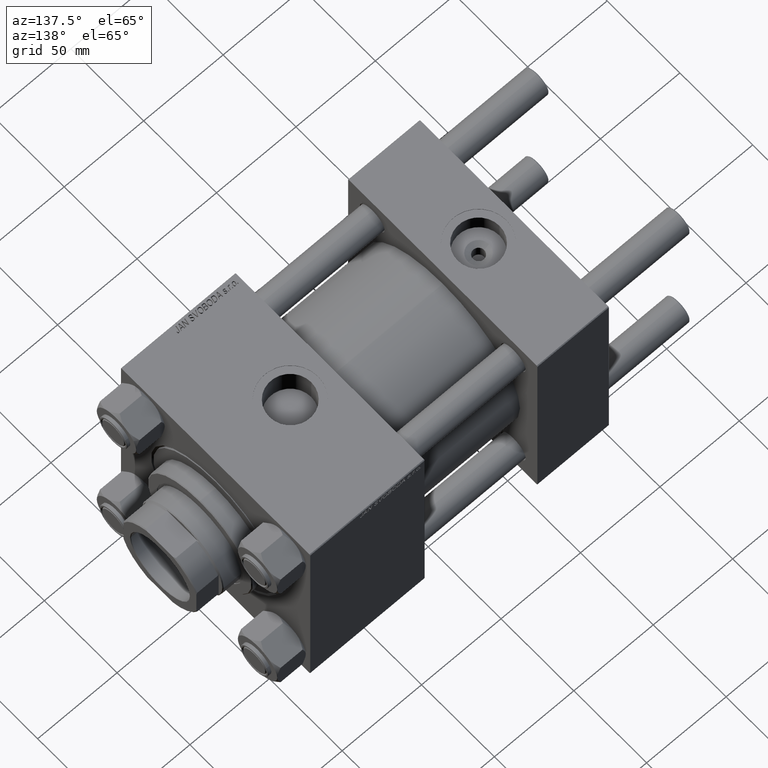
[diagram: clean part render]
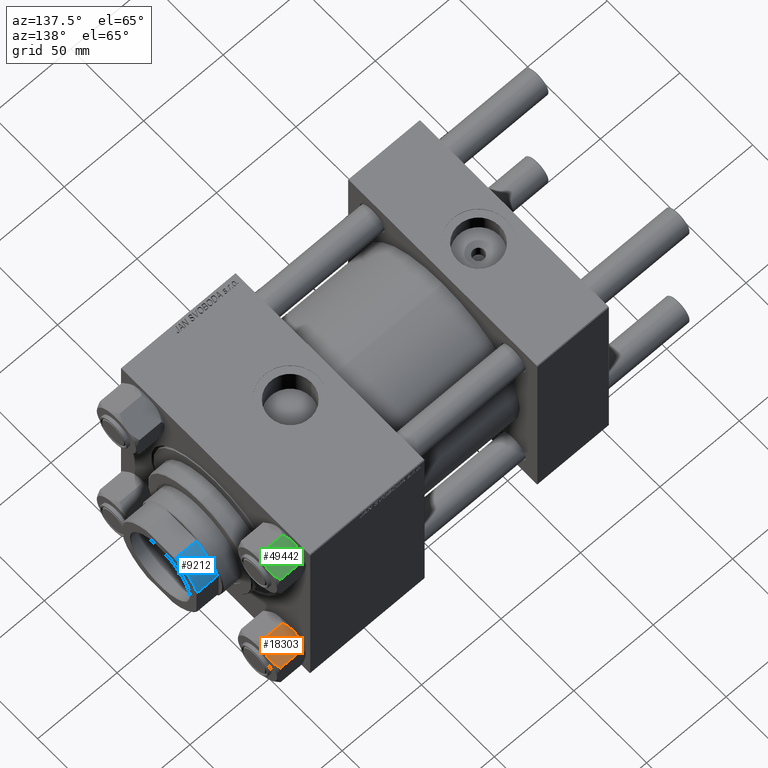
[diagram: same view with three faces highlighted in distinct colors, each labeled with its STEP entity id]
A machine part, auxiliary view with three faces highlighted in distinct colors.
Their STEP definitions:

[orange] entity #18303 — the highlighted planar face has unit normal (0, -0.5, -0.866).
#768 = EDGE_CURVE ( 'NONE', #28690, #17134, #28759, .T. ) ;
#1678 = CARTESIAN_POINT ( 'NONE',  ( -13.99051971937273819, -2.822342635978014158, -17.26828031537188224 ) ) ;
#1760 = CARTESIAN_POINT ( 'NONE',  ( -8.502393313253744367, -12.32805640973649020, -16.58801072835993295 ) ) ;
#2431 = DIRECTION ( 'NONE',  ( -0.5000000000000004441, 0.8660254037844382635, 0.000000000000000000 ) ) ;
#2950 = DIRECTION ( 'NONE',  ( 0.5000000000000004441, -0.8660254037844382635, 0.000000000000000000 ) ) ;
#3332 = CARTESIAN_POINT ( 'NONE',  ( -7.809999999999990727, -13.52731680711293727, -18.00000000000000000 ) ) ;
#3690 = VERTEX_POINT ( 'NONE', #31344 ) ;
#3695 = VERTEX_POINT ( 'NONE', #14919 ) ;
#3804 = LINE ( 'NONE', #19964, #32401 ) ;
#3808 = CARTESIAN_POINT ( 'NONE',  ( -13.04337073483127796, -4.462852799541088267, -0.2430846701012951416 ) ) ;
#4822 = CARTESIAN_POINT ( 'NONE',  ( -11.71499999999999808, -6.763658403556473964, 0.000000000000000000 ) ) ;
#4836 = EDGE_CURVE ( 'NONE', #52198, #37207, #22832, .T. ) ;
#5489 = VECTOR ( 'NONE', #12495, 1000.000000000000227 ) ;
#5822 = CARTESIAN_POINT ( 'NONE',  ( -7.809999999999990727, -13.52731680711293727, -16.00000000000000000 ) ) ;
#6164 = CARTESIAN_POINT ( 'NONE',  ( -14.92394044919338292, -1.205610507090640215, -16.56553707812499709 ) ) ;
#7308 = CARTESIAN_POINT ( 'NONE',  ( -10.38662926516871288, -9.064464007571855220, -17.75691532989870680 ) ) ;
#7810 = ORIENTED_EDGE ( 'NONE', *, *, #768, .F. ) ;
#8236 = CARTESIAN_POINT ( 'NONE',  ( -7.809999999999990727, -13.52731680711293727, -16.00000000000000000 ) ) ;
#9292 = VERTEX_POINT ( 'NONE', #31191 ) ;
#9927 = EDGE_CURVE ( 'NONE', #3695, #16582, #31009, .T. ) ;
#10059 = CARTESIAN_POINT ( 'NONE',  ( -8.506059550806609693, -12.32170630002229927, -1.434462921875002905 ) ) ;
#11559 = ORIENTED_EDGE ( 'NONE', *, *, #9927, .F. ) ;
#11577 = DIRECTION ( 'NONE',  ( 0.5000000000000004441, -0.8660254037844382635, 0.000000000000000000 ) ) ;
#11787 = DIRECTION ( 'NONE',  ( -0.000000000000000000, -0.000000000000000000, 1.000000000000000000 ) ) ;
#11998 = CARTESIAN_POINT ( 'NONE',  ( -15.52647173767732625, -0.1619957022865126384, -2.000000000000000000 ) ) ;
#12257 = CARTESIAN_POINT ( 'NONE',  ( -13.36540581434587338, -3.905071680002329515, -0.3836066851120569221 ) ) ;
#12399 = CARTESIAN_POINT ( 'NONE',  ( -7.903528262322667253, -13.36532110482643176, -2.000000000000000000 ) ) ;
#12495 = DIRECTION ( 'NONE',  ( -0.5000000000000004441, 0.8660254037844382635, 0.000000000000000000 ) ) ;
#13979 = EDGE_CURVE ( 'NONE', #16582, #9292, #37870, .T. ) ;
#14191 = CARTESIAN_POINT ( 'NONE',  ( -11.71499999999999808, -6.763658403556473964, -18.00000000000000000 ) ) ;
#14277 = VECTOR ( 'NONE', #11787, 1000.000000000000000 ) ;
#14919 = CARTESIAN_POINT ( 'NONE',  ( -11.71499999999999808, -6.763658403556473964, -18.00000000000000000 ) ) ;
#15198 = CARTESIAN_POINT ( 'NONE',  ( -15.52647173767732625, -0.1619957022865126384, -16.00000000000000000 ) ) ;
#15380 = FACE_OUTER_BOUND ( 'NONE', #28102, .T. ) ;
#16471 = CARTESIAN_POINT ( 'NONE',  ( -15.52647173767732625, -0.1619957022865126384, -2.000000000000000000 ) ) ;
#16582 = VERTEX_POINT ( 'NONE', #15198 ) ;
#16754 = CARTESIAN_POINT ( 'NONE',  ( -12.38621571200405036, -5.601078687526934274, -0.05089381635301216955 ) ) ;
#17134 = VERTEX_POINT ( 'NONE', #16471 ) ;
#17159 = EDGE_CURVE ( 'NONE', #49311, #37993, #48004, .T. ) ;
#18287 = CARTESIAN_POINT ( 'NONE',  ( -7.809999999999990727, -13.52731680711293727, -1.999999999999998224 ) ) ;
#18303 = ADVANCED_FACE ( 'NONE', ( #15380 ), #42669, .F. ) ;
#18626 = CARTESIAN_POINT ( 'NONE',  ( -14.30591678195075644, -2.276058899034903771, -17.05261278537718539 ) ) ;
#18996 = EDGE_CURVE ( 'NONE', #17134, #3690, #23517, .T. ) ;
#19964 = CARTESIAN_POINT ( 'NONE',  ( -15.62000000000000277, -9.678749765951853952E-16, -18.00000000000000000 ) ) ;
#20277 = B_SPLINE_CURVE_WITH_KNOTS ( 'NONE', 3,
 ( #30189, #34414, #43152, #42624, #46339, #10059, #42894, #26213 ),
 .UNSPECIFIED., .F., .F.,
 ( 4, 2, 2, 4 ),
 ( 0.007890825462474437835, 0.01181022244528555365, 0.01376992093669110982, 0.01572961942809666600 ),
 .UNSPECIFIED. ) ;
#20546 = ORIENTED_EDGE ( 'NONE', *, *, #25928, .F. ) ;
#21816 = CARTESIAN_POINT ( 'NONE',  ( -13.02784502466562344, -4.489744118371593373, -17.80281335400754728 ) ) ;
#22001 = DIRECTION ( 'NONE',  ( -0.5000000000000004441, 0.8660254037844382635, 0.000000000000000000 ) ) ;
#22832 = LINE ( 'NONE', #27580, #47447 ) ;
#23101 = EDGE_CURVE ( 'NONE', #37993, #3695, #45932, .T. ) ;
#23517 = B_SPLINE_CURVE_WITH_KNOTS ( 'NONE', 3,
 ( #11998, #28165, #48793, #12257, #3808, #16754, #24692, #4822 ),
 .UNSPECIFIED., .F., .F.,
 ( 4, 2, 2, 4 ),
 ( 4.472842642001277084E-07, 0.003945636373369319598, 0.005918230917921879150, 0.007890825462474437835 ),
 .UNSPECIFIED. ) ;
#24692 = CARTESIAN_POINT ( 'NONE',  ( -12.04818928091285102, -6.186557640478069331, 1.785545452812065115E-15 ) ) ;
#25928 = EDGE_CURVE ( 'NONE', #9292, #28690, #3804, .T. ) ;
#26118 = CARTESIAN_POINT ( 'NONE',  ( -9.114548888011778871, -11.26777185211904353, -17.08577173959730544 ) ) ;
#26213 = CARTESIAN_POINT ( 'NONE',  ( -7.903528262322667253, -13.36532110482643176, -2.000000000000000000 ) ) ;
#27175 = CARTESIAN_POINT ( 'NONE',  ( -11.04378428799594225, -7.926238119586011877, -17.94910618364698252 ) ) ;
#27438 = CARTESIAN_POINT ( 'NONE',  ( -11.38181071908713982, -7.340759166634878596, -18.00000000000000355 ) ) ;
#27580 = CARTESIAN_POINT ( 'NONE',  ( -7.809999999999990727, -13.52731680711293727, -1.999999999999998224 ) ) ;
#27691 = CARTESIAN_POINT ( 'NONE',  ( -7.903528262322667253, -13.36532110482643176, -16.00000000000000000 ) ) ;
#28102 = EDGE_LOOP ( 'NONE', ( #31022, #34680, #34231, #36395, #37933, #7810, #20546, #44643, #11559, #29330 ) ) ;
#28145 = CARTESIAN_POINT ( 'NONE',  ( -7.809999999999990727, -13.52731680711293727, -16.00000000000000000 ) ) ;
#28165 = CARTESIAN_POINT ( 'NONE',  ( -14.92760668674624647, -1.199260397376458398, -1.411989271640067045 ) ) ;
#28690 = VERTEX_POINT ( 'NONE', #45685 ) ;
#28759 = LINE ( 'NONE', #48870, #40512 ) ;
#29330 = ORIENTED_EDGE ( 'NONE', *, *, #23101, .F. ) ;
#30189 = CARTESIAN_POINT ( 'NONE',  ( -11.71499999999999808, -6.763658403556473964, 0.000000000000000000 ) ) ;
#30494 = DIRECTION ( 'NONE',  ( 0.8660254037844383745, 0.5000000000000005551, 0.000000000000000000 ) ) ;
#31009 = B_SPLINE_CURVE_WITH_KNOTS ( 'NONE', 3,
 ( #38738, #51176, #21816, #1678, #18626, #6164, #38200, #34498 ),
 .UNSPECIFIED., .F., .F.,
 ( 4, 2, 2, 4 ),
 ( 0.007890825462474418753, 0.01181022244528553457, 0.01376992093669109074, 0.01572961942809664865 ),
 .UNSPECIFIED. ) ;
#31022 = ORIENTED_EDGE ( 'NONE', *, *, #17159, .F. ) ;
#31191 = CARTESIAN_POINT ( 'NONE',  ( -15.62000000000000277, -9.678749765951853952E-16, -16.00000000000000000 ) ) ;
#31344 = CARTESIAN_POINT ( 'NONE',  ( -11.71499999999999808, -6.763658403556473964, 0.000000000000000000 ) ) ;
#32401 = VECTOR ( 'NONE', #47503, 1000.000000000000000 ) ;
#34231 = ORIENTED_EDGE ( 'NONE', *, *, #4836, .F. ) ;
#34414 = CARTESIAN_POINT ( 'NONE',  ( -11.05297796109637432, -7.910314210667888979, 1.661878642512937265E-15 ) ) ;
#34498 = CARTESIAN_POINT ( 'NONE',  ( -15.52647173767732625, -0.1619957022865126384, -16.00000000000000000 ) ) ;
#34680 = ORIENTED_EDGE ( 'NONE', *, *, #45901, .T. ) ;
#36395 = ORIENTED_EDGE ( 'NONE', *, *, #49425, .F. ) ;
#37207 = VERTEX_POINT ( 'NONE', #18287 ) ;
#37870 = LINE ( 'NONE', #5822, #44248 ) ;
#37933 = ORIENTED_EDGE ( 'NONE', *, *, #18996, .F. ) ;
#37993 = VERTEX_POINT ( 'NONE', #27691 ) ;
#38200 = CARTESIAN_POINT ( 'NONE',  ( -15.22736220980735666, -0.6800686015852318578, -16.29368822085855584 ) ) ;
#38517 = AXIS2_PLACEMENT_3D ( 'NONE', #47688, #30494, #2431 ) ;
#38738 = CARTESIAN_POINT ( 'NONE',  ( -11.71499999999999808, -6.763658403556473964, -18.00000000000000000 ) ) ;
#39605 = LINE ( 'NONE', #3332, #14277 ) ;
#40512 = VECTOR ( 'NONE', #11577, 1000.000000000000227 ) ;
#42624 = CARTESIAN_POINT ( 'NONE',  ( -9.439480280627249087, -10.70497417113492844, -0.7317196846281118772 ) ) ;
#42669 = PLANE ( 'NONE',  #38517 ) ;
#42894 = CARTESIAN_POINT ( 'NONE',  ( -8.202637790192634171, -12.84724820552771085, -1.706311779141443496 ) ) ;
#43152 = CARTESIAN_POINT ( 'NONE',  ( -10.40215497533436739, -9.037572688741352778, -0.1971866459924528636 ) ) ;
#44248 = VECTOR ( 'NONE', #22001, 1000.000000000000227 ) ;
#44643 = ORIENTED_EDGE ( 'NONE', *, *, #13979, .F. ) ;
#45685 = CARTESIAN_POINT ( 'NONE',  ( -15.62000000000000277, -9.678749765951853952E-16, -1.999999999999998224 ) ) ;
#45901 = EDGE_CURVE ( 'NONE', #49311, #37207, #39605, .T. ) ;
#45932 = B_SPLINE_CURVE_WITH_KNOTS ( 'NONE', 3,
 ( #49937, #1760, #26118, #47547, #7308, #27175, #27438, #14191 ),
 .UNSPECIFIED., .F., .F.,
 ( 4, 2, 2, 4 ),
 ( 4.472842641837737257E-07, 0.003945636373369302251, 0.005918230917921860068, 0.007890825462474418753 ),
 .UNSPECIFIED. ) ;
#46339 = CARTESIAN_POINT ( 'NONE',  ( -9.124083218049230837, -11.25125790807803661, -0.9473872146228132785 ) ) ;
#47447 = VECTOR ( 'NONE', #2950, 1000.000000000000227 ) ;
#47503 = DIRECTION ( 'NONE',  ( -0.000000000000000000, -0.000000000000000000, 1.000000000000000000 ) ) ;
#47547 = CARTESIAN_POINT ( 'NONE',  ( -10.06459418565411745, -9.622245127110614860, -17.61639331488794369 ) ) ;
#47688 = CARTESIAN_POINT ( 'NONE',  ( -7.809999999999990727, -13.52731680711293727, -18.00000000000000000 ) ) ;
#48004 = LINE ( 'NONE', #28145, #5489 ) ;
#48793 = CARTESIAN_POINT ( 'NONE',  ( -14.31545111198821019, -2.259544954993900845, -0.9142282604026920056 ) ) ;
#48870 = CARTESIAN_POINT ( 'NONE',  ( -7.809999999999990727, -13.52731680711293727, -1.999999999999998224 ) ) ;
#49311 = VERTEX_POINT ( 'NONE', #8236 ) ;
#49425 = EDGE_CURVE ( 'NONE', #3690, #52198, #20277, .T. ) ;
#49937 = CARTESIAN_POINT ( 'NONE',  ( -7.903528262322667253, -13.36532110482643176, -16.00000000000000000 ) ) ;
#51176 = CARTESIAN_POINT ( 'NONE',  ( -12.37702203890362007, -5.617002596445060725, -18.00000000000000000 ) ) ;
#52198 = VERTEX_POINT ( 'NONE', #12399 ) ;

[blue] entity #9212 — the highlighted cylindrical surface (partial cylindrical patch) has radius 27 mm, axis along (1, 0, -0).
#26 = EDGE_CURVE ( 'NONE', #38548, #27405, #48122, .T. ) ;
#225 = AXIS2_PLACEMENT_3D ( 'NONE', #2586, #18748, #2327 ) ;
#2327 = DIRECTION ( 'NONE',  ( 1.000000000000000000, 0.000000000000000000, 0.000000000000000000 ) ) ;
#2586 = CARTESIAN_POINT ( 'NONE',  ( 0.000000000000000000, 0.000000000000000000, -0.001000000000001000089 ) ) ;
#2783 = EDGE_CURVE ( 'NONE', #27405, #40490, #30414, .T. ) ;
#3897 = CARTESIAN_POINT ( 'NONE',  ( -25.00000000000000000, -10.19803902718555300, 164.5000000000000000 ) ) ;
#5743 = DIRECTION ( 'NONE',  ( -0.000000000000000000, -0.000000000000000000, -1.000000000000000000 ) ) ;
#6289 = FACE_OUTER_BOUND ( 'NONE', #6958, .T. ) ;
#6861 = CARTESIAN_POINT ( 'NONE',  ( -25.00000000000000000, -10.19803902718555300, -0.001000000000001000089 ) ) ;
#6958 = EDGE_LOOP ( 'NONE', ( #46673, #8821, #49606, #27108 ) ) ;
#7226 = VERTEX_POINT ( 'NONE', #27980 ) ;
#8821 = ORIENTED_EDGE ( 'NONE', *, *, #33420, .T. ) ;
#9212 = ADVANCED_FACE ( 'NONE', ( #6289 ), #23248, .T. ) ;
#9214 = AXIS2_PLACEMENT_3D ( 'NONE', #31964, #18747, #19790 ) ;
#11899 = EDGE_CURVE ( 'NONE', #38548, #7226, #18261, .T. ) ;
#12889 = DIRECTION ( 'NONE',  ( 1.000000000000000000, 8.881784197001252323E-16, 0.000000000000000000 ) ) ;
#13063 = AXIS2_PLACEMENT_3D ( 'NONE', #33019, #5743, #12889 ) ;
#18241 = DIRECTION ( 'NONE',  ( -0.000000000000000000, -0.000000000000000000, 1.000000000000000000 ) ) ;
#18261 = LINE ( 'NONE', #6861, #41627 ) ;
#18747 = DIRECTION ( 'NONE',  ( -0.000000000000000000, -0.000000000000000000, 1.000000000000000000 ) ) ;
#18748 = DIRECTION ( 'NONE',  ( -0.000000000000000000, -0.000000000000000000, 1.000000000000000000 ) ) ;
#19790 = DIRECTION ( 'NONE',  ( -1.000000000000000000, 0.000000000000000000, 0.000000000000000000 ) ) ;
#23248 = CYLINDRICAL_SURFACE ( 'NONE', #225, 26.99999999999999645 ) ;
#26439 = CARTESIAN_POINT ( 'NONE',  ( -10.19803902718555655, -25.00000000000000000, -0.001000000000001000089 ) ) ;
#27085 = VECTOR ( 'NONE', #18241, 1000.000000000000000 ) ;
#27108 = ORIENTED_EDGE ( 'NONE', *, *, #26, .T. ) ;
#27405 = VERTEX_POINT ( 'NONE', #37072 ) ;
#27980 = CARTESIAN_POINT ( 'NONE',  ( -25.00000000000000000, -10.19803902718555300, 177.5000000000000568 ) ) ;
#30414 = LINE ( 'NONE', #26439, #27085 ) ;
#31063 = CARTESIAN_POINT ( 'NONE',  ( -10.19803902718555655, -25.00000000000000000, 177.5000000000000568 ) ) ;
#31964 = CARTESIAN_POINT ( 'NONE',  ( 0.000000000000000000, 0.000000000000000000, 164.5000000000000000 ) ) ;
#33019 = CARTESIAN_POINT ( 'NONE',  ( 0.000000000000000000, 0.000000000000000000, 177.5000000000000568 ) ) ;
#33420 = EDGE_CURVE ( 'NONE', #40490, #7226, #42714, .T. ) ;
#37072 = CARTESIAN_POINT ( 'NONE',  ( -10.19803902718555655, -25.00000000000000000, 164.5000000000000000 ) ) ;
#38548 = VERTEX_POINT ( 'NONE', #3897 ) ;
#40490 = VERTEX_POINT ( 'NONE', #31063 ) ;
#41627 = VECTOR ( 'NONE', #46324, 1000.000000000000000 ) ;
#42714 = CIRCLE ( 'NONE', #13063, 26.99999999999999645 ) ;
#46324 = DIRECTION ( 'NONE',  ( -0.000000000000000000, -0.000000000000000000, 1.000000000000000000 ) ) ;
#46673 = ORIENTED_EDGE ( 'NONE', *, *, #2783, .T. ) ;
#48122 = CIRCLE ( 'NONE', #9214, 26.99999999999999645 ) ;
#49606 = ORIENTED_EDGE ( 'NONE', *, *, #11899, .F. ) ;

[green] entity #49442 — the highlighted planar face has unit normal (-0, -0.5, -0.866).
#42 = VERTEX_POINT ( 'NONE', #43604 ) ;
#1076 = EDGE_LOOP ( 'NONE', ( #48115, #25098, #26756, #23138, #4862, #2916, #43030, #33435, #21220, #6410 ) ) ;
#1188 = CARTESIAN_POINT ( 'NONE',  ( -7.810000000000002274, 13.52731680711293549, -1.999999999999998224 ) ) ;
#1303 = CARTESIAN_POINT ( 'NONE',  ( -4.557734399832410688, 13.52731680711293549, -0.7341470174115168890 ) ) ;
#2691 = DIRECTION ( 'NONE',  ( -1.000000000000000000, -3.331735229148797044E-16, 0.000000000000000000 ) ) ;
#2916 = ORIENTED_EDGE ( 'NONE', *, *, #49489, .F. ) ;
#3070 = LINE ( 'NONE', #43306, #15983 ) ;
#3255 = VECTOR ( 'NONE', #18325, 1000.000000000000000 ) ;
#4190 = CARTESIAN_POINT ( 'NONE',  ( -4.506943796211480446E-15, 13.52731680711293905, 0.000000000000000000 ) ) ;
#4267 = CARTESIAN_POINT ( 'NONE',  ( 7.030203932307570902, 13.52731680711294260, -16.29099812210859710 ) ) ;
#4862 = ORIENTED_EDGE ( 'NONE', *, *, #48774, .F. ) ;
#6410 = ORIENTED_EDGE ( 'NONE', *, *, #33402, .F. ) ;
#6608 = CARTESIAN_POINT ( 'NONE',  ( -7.810000000000002274, 13.52731680711293549, -1.999999999999998224 ) ) ;
#6873 = FACE_OUTER_BOUND ( 'NONE', #1076, .T. ) ;
#7539 = CARTESIAN_POINT ( 'NONE',  ( 7.809999999999994280, 13.52731680711294082, -16.00000000000000000 ) ) ;
#8173 = DIRECTION ( 'NONE',  ( -1.000000000000000000, -3.331735229148797044E-16, 0.000000000000000000 ) ) ;
#8500 = CARTESIAN_POINT ( 'NONE',  ( 1.333889873825125472, 13.52731680711293727, -17.93843358996559800 ) ) ;
#8659 = CARTESIAN_POINT ( 'NONE',  ( -1.335584685993417065, 13.52731680711293549, -17.99999999999999289 ) ) ;
#9500 = CARTESIAN_POINT ( 'NONE',  ( -3.287826776903154613, 13.52731680711293549, -0.3804584453753406814 ) ) ;
#10533 = CARTESIAN_POINT ( 'NONE',  ( -4.506943796211480446E-15, 13.52731680711293905, -18.00000000000000000 ) ) ;
#11015 = DIRECTION ( 'NONE',  ( -0.000000000000000000, -0.000000000000000000, 1.000000000000000000 ) ) ;
#11224 = CARTESIAN_POINT ( 'NONE',  ( -7.622943475354639453, 13.52731680711293727, -16.00000000000000000 ) ) ;
#11673 = EDGE_CURVE ( 'NONE', #16896, #19578, #21588, .T. ) ;
#11954 = CARTESIAN_POINT ( 'NONE',  ( 3.287826776903146619, 13.52731680711294082, -17.61954155462465366 ) ) ;
#13717 = EDGE_CURVE ( 'NONE', #24978, #30878, #41901, .T. ) ;
#13838 = DIRECTION ( 'NONE',  ( 1.000000000000000000, 3.331735229148797044E-16, 0.000000000000000000 ) ) ;
#14553 = CARTESIAN_POINT ( 'NONE',  ( -7.810000000000002274, 13.52731680711293549, -18.00000000000000000 ) ) ;
#15578 = CARTESIAN_POINT ( 'NONE',  ( 7.622943475354630571, 13.52731680711294082, -16.00000000000000000 ) ) ;
#15842 = CARTESIAN_POINT ( 'NONE',  ( -5.189513245496327976, 13.52731680711293905, -17.04988915682674389 ) ) ;
#15936 = CARTESIAN_POINT ( 'NONE',  ( 0.6693083573771140271, 13.52731680711293905, -17.98750666918891739 ) ) ;
#15983 = VECTOR ( 'NONE', #11015, 1000.000000000000000 ) ;
#16882 = B_SPLINE_CURVE_WITH_KNOTS ( 'NONE', 3,
 ( #37046, #45769, #17190, #42066, #37578, #21173, #9500, #1303, #41014, #37308, #25401, #33331 ),
 .UNSPECIFIED., .F., .F.,
 ( 4, 2, 2, 2, 2, 4 ),
 ( 0.02774433486126545376, 0.02873404020403548878, 0.02972374554680552727, 0.03170315623234559732, 0.03368256691788567431, 0.03566197760342574435 ),
 .UNSPECIFIED. ) ;
#16896 = VERTEX_POINT ( 'NONE', #17961 ) ;
#17190 = CARTESIAN_POINT ( 'NONE',  ( -0.6693083573771245742, 13.52731680711293727, -0.01249333081108506931 ) ) ;
#17961 = CARTESIAN_POINT ( 'NONE',  ( -7.622943475354639453, 13.52731680711293727, -2.000000000000000000 ) ) ;
#18325 = DIRECTION ( 'NONE',  ( 1.000000000000000000, 3.331735229148797044E-16, 0.000000000000000000 ) ) ;
#18644 = AXIS2_PLACEMENT_3D ( 'NONE', #14553, #39181, #30717 ) ;
#19578 = VERTEX_POINT ( 'NONE', #6608 ) ;
#20589 = LINE ( 'NONE', #30894, #40425 ) ;
#20941 = VERTEX_POINT ( 'NONE', #32373 ) ;
#21173 = CARTESIAN_POINT ( 'NONE',  ( -2.644243758052992721, 13.52731680711293549, -0.2408281198024026237 ) ) ;
#21220 = ORIENTED_EDGE ( 'NONE', *, *, #37182, .F. ) ;
#21396 = CARTESIAN_POINT ( 'NONE',  ( 4.553769687922292420, 13.52731680711293905, -0.7327291995145180925 ) ) ;
#21588 = LINE ( 'NONE', #1188, #51072 ) ;
#21807 = CARTESIAN_POINT ( 'NONE',  ( -7.810000000000002274, 13.52731680711293549, -16.00000000000000000 ) ) ;
#22522 = PLANE ( 'NONE',  #18644 ) ;
#23138 = ORIENTED_EDGE ( 'NONE', *, *, #32289, .F. ) ;
#24059 = CARTESIAN_POINT ( 'NONE',  ( -6.427364677720469821, 13.52731680711293549, -16.56149306284486400 ) ) ;
#24819 = CARTESIAN_POINT ( 'NONE',  ( -4.506943796211480446E-15, 13.52731680711293905, -18.00000000000000000 ) ) ;
#24978 = VERTEX_POINT ( 'NONE', #46261 ) ;
#25098 = ORIENTED_EDGE ( 'NONE', *, *, #46016, .T. ) ;
#25401 = CARTESIAN_POINT ( 'NONE',  ( -7.030203932307578896, 13.52731680711293727, -1.709001877891394239 ) ) ;
#26756 = ORIENTED_EDGE ( 'NONE', *, *, #11673, .F. ) ;
#28058 = VERTEX_POINT ( 'NONE', #7539 ) ;
#28290 = CARTESIAN_POINT ( 'NONE',  ( -4.553769687922305742, 13.52731680711293727, -17.26727080048547691 ) ) ;
#28377 = CARTESIAN_POINT ( 'NONE',  ( 6.422751913021809145, 13.52731680711294260, -16.56349088907410660 ) ) ;
#28792 = CARTESIAN_POINT ( 'NONE',  ( -7.622943475354639453, 13.52731680711293727, -16.00000000000000000 ) ) ;
#28976 = LINE ( 'NONE', #42404, #3255 ) ;
#29002 = VECTOR ( 'NONE', #13838, 1000.000000000000000 ) ;
#29140 = CARTESIAN_POINT ( 'NONE',  ( -4.506943796211480446E-15, 13.52731680711293905, -18.00000000000000000 ) ) ;
#30717 = DIRECTION ( 'NONE',  ( 1.000000000000000000, 3.331735229148797044E-16, 0.000000000000000000 ) ) ;
#30878 = VERTEX_POINT ( 'NONE', #11224 ) ;
#30894 = CARTESIAN_POINT ( 'NONE',  ( 7.809999999999995168, 13.52731680711294082, -18.00000000000000000 ) ) ;
#31067 = B_SPLINE_CURVE_WITH_KNOTS ( 'NONE', 3,
 ( #36485, #36745, #33030, #44939, #21396, #48920, #40460, #4190 ),
 .UNSPECIFIED., .F., .F.,
 ( 4, 2, 2, 4 ),
 ( 0.01980594295952729789, 0.02179054093496183772, 0.02377513891039637756, 0.02774433486126545376 ),
 .UNSPECIFIED. ) ;
#31097 = CARTESIAN_POINT ( 'NONE',  ( 7.622943475354630571, 13.52731680711294082, -2.000000000000000000 ) ) ;
#31352 = B_SPLINE_CURVE_WITH_KNOTS ( 'NONE', 3,
 ( #28792, #32254, #24059, #15842, #28290, #44928, #8659, #24819 ),
 .UNSPECIFIED., .F., .F.,
 ( 4, 2, 2, 4 ),
 ( 0.01980594295952729442, 0.02179054093496183425, 0.02377513891039637409, 0.02774433486126545029 ),
 .UNSPECIFIED. ) ;
#31503 = LINE ( 'NONE', #52394, #44020 ) ;
#31840 = B_SPLINE_CURVE_WITH_KNOTS ( 'NONE', 3,
 ( #29140, #52215, #15936, #8500, #32093, #48235, #11954, #32341, #48490, #28377, #4267, #32599 ),
 .UNSPECIFIED., .F., .F.,
 ( 4, 2, 2, 2, 2, 4 ),
 ( 0.02774433486126545029, 0.02873404020403548531, 0.02972374554680552380, 0.03170315623234559732, 0.03368256691788566737, 0.03566197760342574435 ),
 .UNSPECIFIED. ) ;
#32093 = CARTESIAN_POINT ( 'NONE',  ( 1.663410456966166295, 13.52731680711293905, -17.90195050864300086 ) ) ;
#32254 = CARTESIAN_POINT ( 'NONE',  ( -7.030888348548057998, 13.52731680711293727, -16.29066211644969897 ) ) ;
#32289 = EDGE_CURVE ( 'NONE', #20941, #16896, #16882, .T. ) ;
#32341 = CARTESIAN_POINT ( 'NONE',  ( 4.557734399832405359, 13.52731680711293905, -17.26585298258848411 ) ) ;
#32373 = CARTESIAN_POINT ( 'NONE',  ( -4.506943796211480446E-15, 13.52731680711293905, 0.000000000000000000 ) ) ;
#32599 = CARTESIAN_POINT ( 'NONE',  ( 7.622943475354630571, 13.52731680711294082, -16.00000000000000000 ) ) ;
#33030 = CARTESIAN_POINT ( 'NONE',  ( 6.427364677720460051, 13.52731680711294082, -1.438506937155139553 ) ) ;
#33331 = CARTESIAN_POINT ( 'NONE',  ( -7.622943475354639453, 13.52731680711293727, -2.000000000000000000 ) ) ;
#33374 = VERTEX_POINT ( 'NONE', #15578 ) ;
#33402 = EDGE_CURVE ( 'NONE', #30878, #50555, #31352, .T. ) ;
#33435 = ORIENTED_EDGE ( 'NONE', *, *, #44867, .F. ) ;
#34055 = DIRECTION ( 'NONE',  ( -0.000000000000000000, -0.000000000000000000, 1.000000000000000000 ) ) ;
#36485 = CARTESIAN_POINT ( 'NONE',  ( 7.622943475354630571, 13.52731680711294082, -2.000000000000000000 ) ) ;
#36745 = CARTESIAN_POINT ( 'NONE',  ( 7.030888348548049116, 13.52731680711294260, -1.709337883550296810 ) ) ;
#37046 = CARTESIAN_POINT ( 'NONE',  ( -4.506943796211480446E-15, 13.52731680711293905, 0.000000000000000000 ) ) ;
#37182 = EDGE_CURVE ( 'NONE', #50555, #33374, #31840, .T. ) ;
#37308 = CARTESIAN_POINT ( 'NONE',  ( -6.422751913021819803, 13.52731680711293905, -1.436509110925896504 ) ) ;
#37578 = CARTESIAN_POINT ( 'NONE',  ( -1.663410456966178064, 13.52731680711294082, -0.09804949135699474183 ) ) ;
#39181 = DIRECTION ( 'NONE',  ( 3.331735229148797044E-16, -1.000000000000000000, 0.000000000000000000 ) ) ;
#40425 = VECTOR ( 'NONE', #34055, 1000.000000000000000 ) ;
#40460 = CARTESIAN_POINT ( 'NONE',  ( 1.335584685993407517, 13.52731680711293905, -4.214835945537398487E-15 ) ) ;
#41014 = CARTESIAN_POINT ( 'NONE',  ( -5.184073258379398474, 13.52731680711293372, -0.9481437906500842505 ) ) ;
#41901 = LINE ( 'NONE', #21807, #29002 ) ;
#42066 = CARTESIAN_POINT ( 'NONE',  ( -1.333889873825136130, 13.52731680711293549, -0.06156641003439738274 ) ) ;
#42404 = CARTESIAN_POINT ( 'NONE',  ( -7.810000000000002274, 13.52731680711293549, -16.00000000000000000 ) ) ;
#43030 = ORIENTED_EDGE ( 'NONE', *, *, #44713, .F. ) ;
#43306 = CARTESIAN_POINT ( 'NONE',  ( -7.810000000000002274, 13.52731680711293549, -18.00000000000000000 ) ) ;
#43604 = CARTESIAN_POINT ( 'NONE',  ( 7.809999999999994280, 13.52731680711294082, -1.999999999999998224 ) ) ;
#44020 = VECTOR ( 'NONE', #8173, 1000.000000000000000 ) ;
#44713 = EDGE_CURVE ( 'NONE', #28058, #42, #20589, .T. ) ;
#44867 = EDGE_CURVE ( 'NONE', #33374, #28058, #28976, .T. ) ;
#44928 = CARTESIAN_POINT ( 'NONE',  ( -2.638177715023108494, 13.52731680711293549, -17.79984593233010770 ) ) ;
#44939 = CARTESIAN_POINT ( 'NONE',  ( 5.189513245496318206, 13.52731680711294260, -0.9501108431732598891 ) ) ;
#45769 = CARTESIAN_POINT ( 'NONE',  ( -0.3330234424833884432, 13.52731680711294082, -4.372948762358202269E-15 ) ) ;
#46016 = EDGE_CURVE ( 'NONE', #24978, #19578, #3070, .T. ) ;
#46261 = CARTESIAN_POINT ( 'NONE',  ( -7.810000000000002274, 13.52731680711293549, -16.00000000000000000 ) ) ;
#47085 = VERTEX_POINT ( 'NONE', #31097 ) ;
#48115 = ORIENTED_EDGE ( 'NONE', *, *, #13717, .F. ) ;
#48235 = CARTESIAN_POINT ( 'NONE',  ( 2.644243758052981175, 13.52731680711294260, -17.75917188019758797 ) ) ;
#48490 = CARTESIAN_POINT ( 'NONE',  ( 5.184073258379390481, 13.52731680711294082, -17.05185620934991064 ) ) ;
#48774 = EDGE_CURVE ( 'NONE', #47085, #20941, #31067, .T. ) ;
#48920 = CARTESIAN_POINT ( 'NONE',  ( 2.638177715023098724, 13.52731680711293905, -0.2001540676698886079 ) ) ;
#49442 = ADVANCED_FACE ( 'NONE', ( #6873 ), #22522, .F. ) ;
#49489 = EDGE_CURVE ( 'NONE', #42, #47085, #31503, .T. ) ;
#50555 = VERTEX_POINT ( 'NONE', #10533 ) ;
#51072 = VECTOR ( 'NONE', #2691, 1000.000000000000000 ) ;
#52215 = CARTESIAN_POINT ( 'NONE',  ( 0.3330234424833778406, 13.52731680711293905, -17.99999999999999645 ) ) ;
#52394 = CARTESIAN_POINT ( 'NONE',  ( -7.810000000000002274, 13.52731680711293549, -1.999999999999998224 ) ) ;